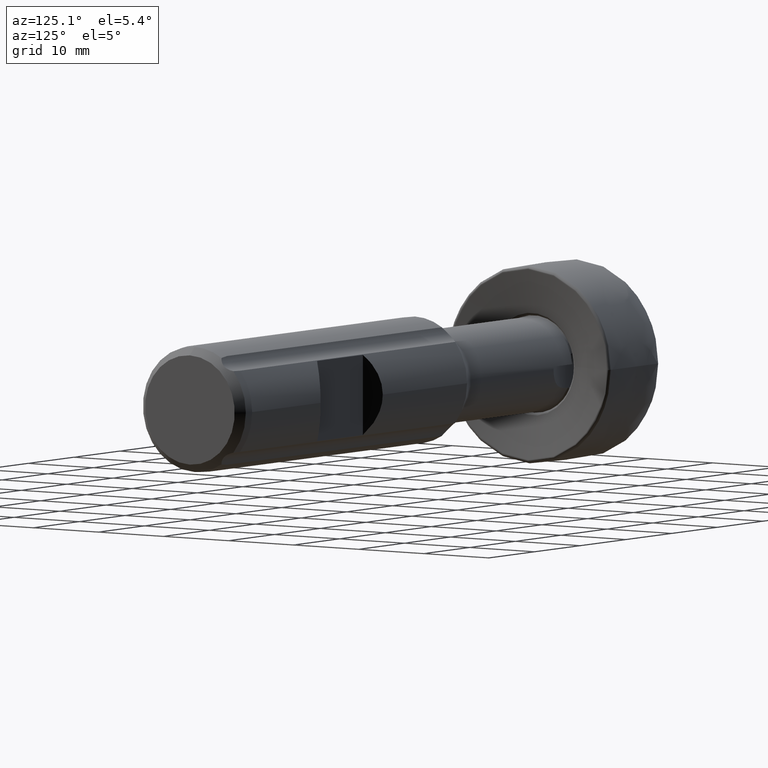
[diagram: clean part render]
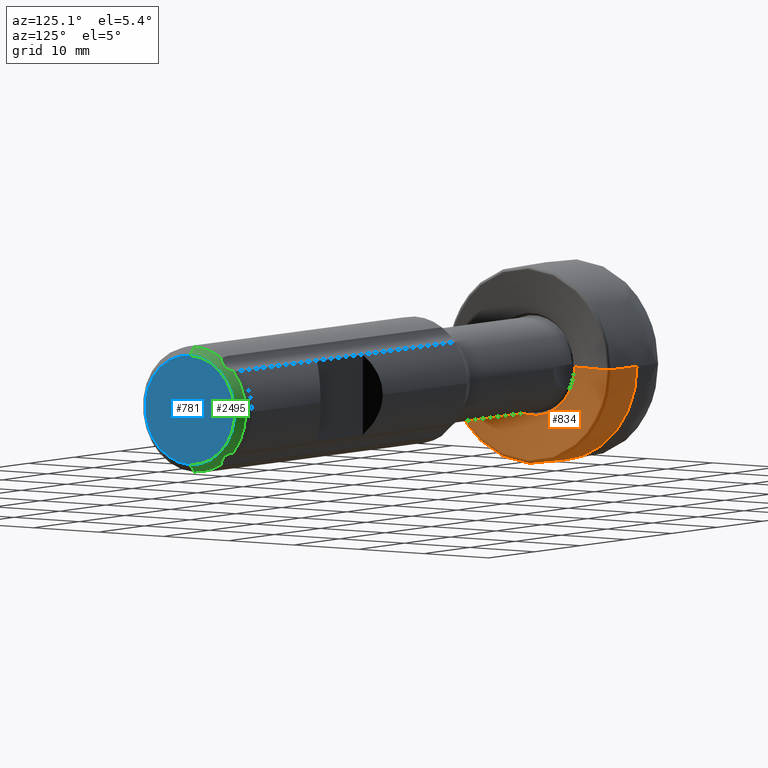
[diagram: same view with three faces highlighted in distinct colors, each labeled with its STEP entity id]
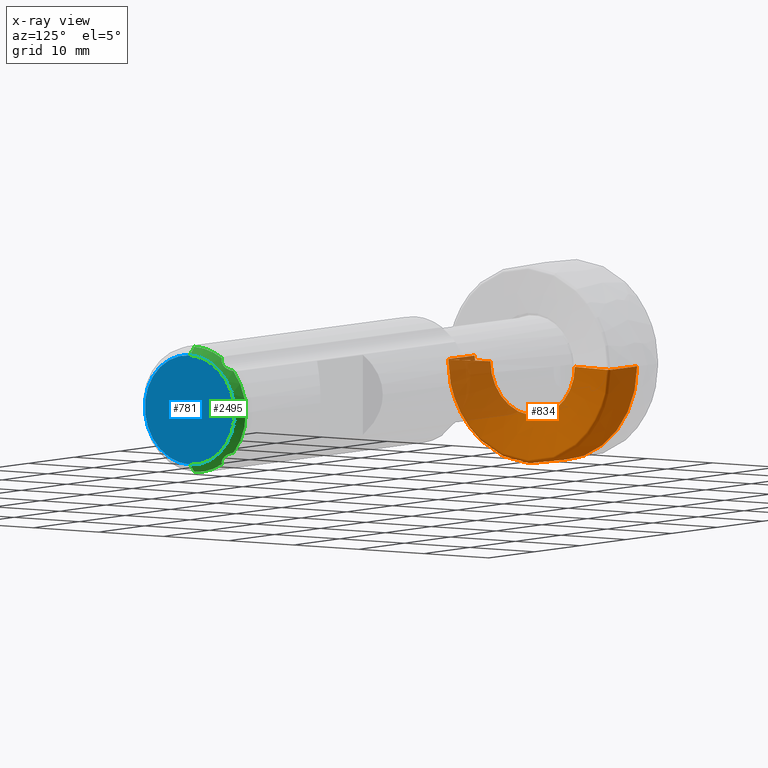
[diagram: x-ray of the same camera — body ghosted, the three highlighted faces saturated]
A machine part, auxiliary view with three faces highlighted in distinct colors.
The next image is the same camera in x-ray (body ghosted, the three faces saturated) — at least one of them is partly hidden behind the body in this view.
Their STEP definitions:

[orange] entity #834 — the highlighted face is a freeform B-spline surface patch.
#7 = CARTESIAN_POINT ( 'NONE',  ( -74.39908995793874200, 12.48189335041579700, -1.528591073888533900E-015 ) ) ;
#23 = CARTESIAN_POINT ( 'NONE',  ( -79.88823840390615800, 12.48189335041579700, -1.528591073888533900E-015 ) ) ;
#83 = CARTESIAN_POINT ( 'NONE',  ( -74.62122233425287700, -8.269108650816404400, 0.0000000000000000000 ) ) ;
#95 = CARTESIAN_POINT ( 'NONE',  ( -79.85816035350333700, -12.48189335041579700, 0.0000000000000000000 ) ) ;
#108 = CARTESIAN_POINT ( 'NONE',  ( -74.19513732123553500, -12.45330083443332100, 0.0000000000000000000 ) ) ;
#125 = CARTESIAN_POINT ( 'NONE',  ( -74.23025794863225700, 12.46669345911872600, -1.526729624066099300E-015 ) ) ;
#134 = CARTESIAN_POINT ( 'NONE',  ( -80.00633578537409100, 12.48151233041585900, -1.528544412396200100E-015 ) ) ;
#146 = CARTESIAN_POINT ( 'NONE',  ( -73.99671900663625500, -12.30616305468504900, 0.0000000000000000000 ) ) ;
#151 = CARTESIAN_POINT ( 'NONE',  ( -79.96343352991323200, -12.48189335041579700, 0.0000000000000000000 ) ) ;
#158 = CARTESIAN_POINT ( 'NONE',  ( -73.95446410567792800, -12.13801515596251000, -24.27603031192500900 ) ) ;
#173 = CARTESIAN_POINT ( 'NONE',  ( -74.34285485914875800, 12.48189335041579700, -1.528591073888533900E-015 ) ) ;
#176 = CARTESIAN_POINT ( 'NONE',  ( -73.95904738320575700, 12.02448941209618000, -24.04897882419236100 ) ) ;
#194 = CARTESIAN_POINT ( 'NONE',  ( -73.95904738320574300, 12.02448941209618400, -1.472575246990483200E-015 ) ) ;
#196 = CARTESIAN_POINT ( 'NONE',  ( -73.97857762805735100, 11.91372788953662900, -1.459010872583358600E-015 ) ) ;
#207 = CARTESIAN_POINT ( 'NONE',  ( -74.62122233425287700, -8.269108650816404400, 0.0000000000000000000 ) ) ;
#226 = EDGE_CURVE ( 'NONE', #3506, #2547, #2864, .T. ) ;
#252 = VERTEX_POINT ( 'NONE', #3732 ) ;
#299 = CARTESIAN_POINT ( 'NONE',  ( -79.84312132830193300, 12.48189335041579700, -1.528591073888533900E-015 ) ) ;
#308 = CARTESIAN_POINT ( 'NONE',  ( -74.49281512258870900, -12.48189335041579700, 0.0000000000000000000 ) ) ;
#317 = CARTESIAN_POINT ( 'NONE',  ( -74.36159989207874300, -12.48189335041579900, -24.96378670083158700 ) ) ;
#337 = CARTESIAN_POINT ( 'NONE',  ( -79.84312132830193300, 12.48189335041579700, -1.528591073888533900E-015 ) ) ;
#406 = CARTESIAN_POINT ( 'NONE',  ( -78.06593427070753000, -12.48189335041579500, 0.0000000000000000000 ) ) ;
#422 = CARTESIAN_POINT ( 'NONE',  ( -74.32410982621875900, -12.48189335041579700, 0.0000000000000000000 ) ) ;
#423 = CARTESIAN_POINT ( 'NONE',  ( -74.07200208086652500, -12.39588192886049400, 0.0000000000000000000 ) ) ;
#426 = CARTESIAN_POINT ( 'NONE',  ( -80.00633578537409100, -12.48151233041585900, 0.0000000000000000000 ) ) ;
#428 = CARTESIAN_POINT ( 'NONE',  ( -73.98508770967454500, 11.87680738201677500, -1.454489414447650000E-015 ) ) ;
#435 = CARTESIAN_POINT ( 'NONE',  ( -74.19513732123553500, -12.45330083443332300, -24.90660166886663500 ) ) ;
#441 = CARTESIAN_POINT ( 'NONE',  ( -79.99704623281599000, -12.48189335041579900, -24.96378670083158700 ) ) ;
#451 = CARTESIAN_POINT ( 'NONE',  ( -73.99671900663626900, 12.30616305468504600, -24.61232610937009100 ) ) ;
#455 = CARTESIAN_POINT ( 'NONE',  ( -79.96343352991323200, 12.48189335041579400, -24.96378670083158700 ) ) ;
#466 = CARTESIAN_POINT ( 'NONE',  ( -73.95446410567792800, 12.13801515596250600, -1.486478140875154600E-015 ) ) ;
#482 = CARTESIAN_POINT ( 'NONE',  ( -74.28661976035877500, 12.48189335041579700, -1.528591073888533900E-015 ) ) ;
#484 = CARTESIAN_POINT ( 'NONE',  ( -73.96230242401433900, -12.00602915833625900, 0.0000000000000000000 ) ) ;
#495 = CARTESIAN_POINT ( 'NONE',  ( -73.96881250563154700, 11.96910865081640700, -1.465793059786920900E-015 ) ) ;
#497 = CARTESIAN_POINT ( 'NONE',  ( -73.98508770967454500, -11.87680738201677700, -23.75361476403354300 ) ) ;
#512 = CARTESIAN_POINT ( 'NONE',  ( -74.62122233425287700, 8.269108650816402700, -16.53821730163280500 ) ) ;
#611 = CARTESIAN_POINT ( 'NONE',  ( -78.06593427070753000, -12.48189335041579500, -24.96378670083158700 ) ) ;
#626 = CARTESIAN_POINT ( 'NONE',  ( -74.49281512258870900, 12.48189335041579400, -24.96378670083158700 ) ) ;
#634 = CARTESIAN_POINT ( 'NONE',  ( -74.36159989207874300, 12.48189335041579700, -1.528591073888533900E-015 ) ) ;
#651 = CARTESIAN_POINT ( 'NONE',  ( -76.28874721311311200, 12.48189335041579500, -1.528591073888533700E-015 ) ) ;
#708 = CARTESIAN_POINT ( 'NONE',  ( -80.00633578537407700, -12.48151233041585900, 0.0000000000000000000 ) ) ;
#722 = CARTESIAN_POINT ( 'NONE',  ( -74.51156015551869400, -12.48189335041579500, 0.0000000000000000000 ) ) ;
#731 = CARTESIAN_POINT ( 'NONE',  ( -74.32410982621875900, 12.48189335041579400, -24.96378670083158700 ) ) ;
#732 = CARTESIAN_POINT ( 'NONE',  ( -73.96640620487868000, -12.19303413840599900, 0.0000000000000000000 ) ) ;
#737 = CARTESIAN_POINT ( 'NONE',  ( -74.30478254236801700, 10.06372788953662600, -1.232451214741097700E-015 ) ) ;
#746 = CARTESIAN_POINT ( 'NONE',  ( -74.19513732123553500, 12.45330083443332100, -1.525089500570783100E-015 ) ) ;
#753 = CARTESIAN_POINT ( 'NONE',  ( -79.99704623281599000, 12.48189335041579700, -1.528591073888533900E-015 ) ) ;
#764 = CARTESIAN_POINT ( 'NONE',  ( -73.96640620487868000, -12.19303413840599900, 0.0000000000000000000 ) ) ;
#769 = CARTESIAN_POINT ( 'NONE',  ( -79.93335547951039600, -12.48189335041579700, 0.0000000000000000000 ) ) ;
#776 = CARTESIAN_POINT ( 'NONE',  ( -73.94928226077995200, -12.07987017337596000, -24.15974034675191700 ) ) ;
#790 = CARTESIAN_POINT ( 'NONE',  ( -74.19513732123553500, 12.45330083443332100, -1.525089500570783100E-015 ) ) ;
#793 = CARTESIAN_POINT ( 'NONE',  ( -73.96230242401433900, 12.00602915833625600, -24.01205831667251200 ) ) ;
#805 = CARTESIAN_POINT ( 'NONE',  ( -73.98508770967454500, 11.87680738201677500, -1.454489414447650000E-015 ) ) ;
#817 = CARTESIAN_POINT ( 'NONE',  ( -74.93766212613773800, -6.474489412096182200, 0.0000000000000000000 ) ) ;
#829 = AXIS2_PLACEMENT_3D ( 'NONE', #1601, #3711, #1919 ) ;
#834 = ADVANCED_FACE ( 'NONE', ( #3452 ), #2809, .F. ) ;
#903 = CARTESIAN_POINT ( 'NONE',  ( -79.88823840390615800, 12.48189335041579400, -24.96378670083158700 ) ) ;
#914 = CARTESIAN_POINT ( 'NONE',  ( -78.06593427070753000, 12.48189335041579500, -1.528591073888533700E-015 ) ) ;
#921 = CARTESIAN_POINT ( 'NONE',  ( -74.45532505672872500, -12.48189335041579700, 0.0000000000000000000 ) ) ;
#931 = CARTESIAN_POINT ( 'NONE',  ( -74.34285485914874400, -12.48189335041579900, -24.96378670083158700 ) ) ;
#935 = CARTESIAN_POINT ( 'NONE',  ( -79.98775939396583100, 12.48189335041579700, -1.528591073888534100E-015 ) ) ;
#1006 = CARTESIAN_POINT ( 'NONE',  ( -74.45532505672872500, -12.48189335041579700, 0.0000000000000000000 ) ) ;
#1020 = CARTESIAN_POINT ( 'NONE',  ( -74.28661976035877500, -12.48189335041579700, 0.0000000000000000000 ) ) ;
#1021 = CARTESIAN_POINT ( 'NONE',  ( -73.95446410567792800, -12.13801515596250600, 0.0000000000000000000 ) ) ;
#1030 = CARTESIAN_POINT ( 'NONE',  ( -74.93766212613773800, 6.474489412096182200, -7.928962734637018700E-016 ) ) ;
#1039 = CARTESIAN_POINT ( 'NONE',  ( -74.17814855192281700, -12.44537884120017600, -24.89075768240034100 ) ) ;
#1043 = CARTESIAN_POINT ( 'NONE',  ( -79.98775939396530500, -12.48189335041579900, -24.96378670083158700 ) ) ;
#1053 = CARTESIAN_POINT ( 'NONE',  ( -73.96640620487869500, 12.19303413840599700, -24.38606827681199400 ) ) ;
#1058 = CARTESIAN_POINT ( 'NONE',  ( -79.93335547951039600, 12.48189335041579400, -24.96378670083158700 ) ) ;
#1067 = CARTESIAN_POINT ( 'NONE',  ( -73.94928226077993800, 12.07987017337596000, -1.479357434194045200E-015 ) ) ;
#1082 = CARTESIAN_POINT ( 'NONE',  ( -74.07200208086652500, 12.39588192886049400, -1.518057712678752200E-015 ) ) ;
#1084 = CARTESIAN_POINT ( 'NONE',  ( -73.96881250563154700, -11.96910865081640700, 0.0000000000000000000 ) ) ;
#1095 = CARTESIAN_POINT ( 'NONE',  ( -73.98834275048315600, -11.85834712825685100, -23.71669425651369400 ) ) ;
#1112 = CARTESIAN_POINT ( 'NONE',  ( -74.93766212613775200, 6.474489412096180500, -12.94897882419236100 ) ) ;
#1191 = CARTESIAN_POINT ( 'NONE',  ( -79.85816035350333700, -12.48189335041579700, 0.0000000000000000000 ) ) ;
#1202 = CARTESIAN_POINT ( 'NONE',  ( -76.28874721311312600, -12.48189335041579500, -24.96378670083158700 ) ) ;
#1216 = CARTESIAN_POINT ( 'NONE',  ( -74.45532505672872500, 12.48189335041579400, -24.96378670083158700 ) ) ;
#1226 = CARTESIAN_POINT ( 'NONE',  ( -74.34285485914875800, 12.48189335041579700, -1.528591073888533900E-015 ) ) ;
#1300 = CARTESIAN_POINT ( 'NONE',  ( -79.98775939396583100, -12.48189335041579700, 0.0000000000000000000 ) ) ;
#1317 = CARTESIAN_POINT ( 'NONE',  ( -74.36159989207874300, -12.48189335041579700, 0.0000000000000000000 ) ) ;
#1333 = CARTESIAN_POINT ( 'NONE',  ( -74.28661976035877500, 12.48189335041579400, -24.96378670083158700 ) ) ;
#1334 = CARTESIAN_POINT ( 'NONE',  ( -73.95579234239714600, -12.04294966585611000, 0.0000000000000000000 ) ) ;
#1346 = CARTESIAN_POINT ( 'NONE',  ( -74.17814855192281700, 12.44537884120017600, -1.524119336205199100E-015 ) ) ;
#1352 = CARTESIAN_POINT ( 'NONE',  ( -79.98775939396530500, 12.48189335041579700, -1.528591073888533900E-015 ) ) ;
#1364 = CARTESIAN_POINT ( 'NONE',  ( -73.96155463335532000, -12.17492782698428400, 0.0000000000000000000 ) ) ;
#1371 = CARTESIAN_POINT ( 'NONE',  ( -79.88823840390615800, -12.48189335041579700, 0.0000000000000000000 ) ) ;
#1381 = CARTESIAN_POINT ( 'NONE',  ( -73.95579234239714600, -12.04294966585611200, -24.08589933171221600 ) ) ;
#1390 = CARTESIAN_POINT ( 'NONE',  ( -73.96640620487868000, 12.19303413840599900, -1.493216022949331200E-015 ) ) ;
#1392 = CARTESIAN_POINT ( 'NONE',  ( -73.96881250563154700, 11.96910865081640200, -23.93821730163280400 ) ) ;
#1395 =( BOUNDED_CURVE ( )  B_SPLINE_CURVE ( 3, ( #708, #2181, #1300, #3378, #1590, #3695, #1901, #95, #2197, #406, #2477, #722, #2789, #1006, #3078, #1317, #3393, #1600, #3710, #1917, #108, #2207, #423, #2497, #732, #2804, #1021, #3094, #1334, #3415, #1620, #3726, #3363, #1578, #3674, #1886, #83, #2183 ),
 .UNSPECIFIED., .F., .T. ) 
 B_SPLINE_CURVE_WITH_KNOTS ( ( 4, 3, 1, 1, 3, 3, 1, 1, 3, 1, 1, 3, 3, 1, 1, 3, 1, 1, 3, 4 ),
 ( 0.5197194194453999000, 0.5208376674408558000, 0.5226485484149494500, 0.5244594293890430000, 0.5262703103631366500, 0.7402651795054843200, 0.7425223087433894300, 0.7447794379812944200, 0.7470365672191994200, 0.7492936964571044200, 0.7515508256950095300, 0.7538079549329145300, 0.7670297125080300900, 0.7692868417459340900, 0.7715439709838380900, 0.7738011002217419800, 0.7760582294596462000, 0.7783153586975504200, 0.7805724879354545300, 1.000000000000000000 ),
 .UNSPECIFIED. ) 
 CURVE ( )  GEOMETRIC_REPRESENTATION_ITEM ( )  RATIONAL_B_SPLINE_CURVE ( ( 1.000000000000000000, 1.000000000000000000, 1.000000000000000000, 1.000000000000000000, 1.000000000000000000, 1.000000000000000000, 1.000000000000000000, 1.000000000000000000, 1.000000000000000000, 1.000000000000000000, 1.000000000000000000, 1.000000000000000000, 1.000000000000000000, 1.000000000000000000, 1.000000000000000000, 1.000000000000000000, 1.000000000000000000, 1.000000000000000000, 1.000000000000000000, 1.000000000000000000, 1.000000000000000000, 1.000000000000000000, 0.9375385246910995500, 0.9375385246910995500, 1.000000000000000000, 1.000000000000000000, 1.000000000000000000, 1.000000000000000000, 1.000000000000000000, 1.000000000000000000, 1.000000000000000000, 1.000000000000000000, 1.000000000000000000, 1.000000000000000000, 1.000000000000000000, 1.000000000000000000, 1.000000000000000000, 1.000000000000000000 ) ) 
 REPRESENTATION_ITEM ( '' )  );
#1407 = CARTESIAN_POINT ( 'NONE',  ( -73.98834275048314200, 11.85834712825684900, -1.452228685379795900E-015 ) ) ;
#1497 = CARTESIAN_POINT ( 'NONE',  ( -79.85816035350332200, 12.48189335041579400, -24.96378670083158700 ) ) ;
#1507 = CARTESIAN_POINT ( 'NONE',  ( -76.28874721311311200, 12.48189335041579500, -1.528591073888533700E-015 ) ) ;
#1514 = CARTESIAN_POINT ( 'NONE',  ( -74.39908995793874200, -12.48189335041579700, 0.0000000000000000000 ) ) ;
#1525 = CARTESIAN_POINT ( 'NONE',  ( -79.97847255511464900, 12.48189335041579700, -1.528591073888533900E-015 ) ) ;
#1548 = CARTESIAN_POINT ( 'NONE',  ( -80.00633578537407700, 0.0000000000000000000, 0.0000000000000000000 ) ) ;
#1578 = CARTESIAN_POINT ( 'NONE',  ( -73.98508770967454500, -11.87680738201677500, 0.0000000000000000000 ) ) ;
#1590 = CARTESIAN_POINT ( 'NONE',  ( -79.96343352991323200, -12.48189335041579700, 0.0000000000000000000 ) ) ;
#1600 = CARTESIAN_POINT ( 'NONE',  ( -74.32410982621875900, -12.48189335041579700, 0.0000000000000000000 ) ) ;
#1601 = CARTESIAN_POINT ( 'NONE',  ( -74.93766212613773800, 0.0000000000000000000, 0.0000000000000000000 ) ) ;
#1619 = CARTESIAN_POINT ( 'NONE',  ( -74.23025794863225700, -12.46669345911872600, 0.0000000000000000000 ) ) ;
#1620 = CARTESIAN_POINT ( 'NONE',  ( -73.96230242401433900, -12.00602915833625900, 0.0000000000000000000 ) ) ;
#1637 = CARTESIAN_POINT ( 'NONE',  ( -74.07200208086652500, -12.39588192886049500, -24.79176385772098000 ) ) ;
#1643 = CARTESIAN_POINT ( 'NONE',  ( -79.97847255511463500, -12.48189335041579900, -24.96378670083158700 ) ) ;
#1653 = CARTESIAN_POINT ( 'NONE',  ( -73.96155463335533400, 12.17492782698428200, -24.34985565396856400 ) ) ;
#1666 = CARTESIAN_POINT ( 'NONE',  ( -74.45532505672872500, 12.48189335041579700, -1.528591073888533900E-015 ) ) ;
#1668 = CARTESIAN_POINT ( 'NONE',  ( -73.95579234239714600, 12.04294966585611000, -1.474835976058337200E-015 ) ) ;
#1686 = CARTESIAN_POINT ( 'NONE',  ( -73.95446410567792800, 12.13801515596250600, -1.486478140875154600E-015 ) ) ;
#1688 = CARTESIAN_POINT ( 'NONE',  ( -73.97857762805735100, -11.91372788953662900, 0.0000000000000000000 ) ) ;
#1700 = CARTESIAN_POINT ( 'NONE',  ( -74.30478254236801700, -10.06372788953662600, -20.12745577907324800 ) ) ;
#1791 = CARTESIAN_POINT ( 'NONE',  ( -79.84312132830193300, -12.48189335041579700, 0.0000000000000000000 ) ) ;
#1798 = CARTESIAN_POINT ( 'NONE',  ( -74.51156015551870800, -12.48189335041579500, -24.96378670083158700 ) ) ;
#1808 = CARTESIAN_POINT ( 'NONE',  ( -74.39908995793874200, 12.48189335041579400, -24.96378670083158700 ) ) ;
#1823 = VERTEX_POINT ( 'NONE', #3512 ) ;
#1830 = CARTESIAN_POINT ( 'NONE',  ( -79.93335547951039600, 12.48189335041579700, -1.528591073888533900E-015 ) ) ;
#1850 = DIRECTION ( 'NONE',  ( 0.0000000000000000000, 0.0000000000000000000, -1.000000000000000000 ) ) ;
#1886 = CARTESIAN_POINT ( 'NONE',  ( -74.30478254236801700, -10.06372788953662600, 0.0000000000000000000 ) ) ;
#1901 = CARTESIAN_POINT ( 'NONE',  ( -79.88823840390615800, -12.48189335041579700, 0.0000000000000000000 ) ) ;
#1917 = CARTESIAN_POINT ( 'NONE',  ( -74.23025794863225700, -12.46669345911872600, 0.0000000000000000000 ) ) ;
#1919 = DIRECTION ( 'NONE',  ( 0.0000000000000000000, -1.000000000000000000, 0.0000000000000000000 ) ) ;
#1932 = CARTESIAN_POINT ( 'NONE',  ( -74.23025794863227100, 12.46669345911872100, -24.93338691823744200 ) ) ;
#1935 = CARTESIAN_POINT ( 'NONE',  ( -80.00633578537409100, 12.48151233041585500, -24.96302466083171000 ) ) ;
#1943 = CARTESIAN_POINT ( 'NONE',  ( -74.07200208086652500, 12.39588192886049200, -1.518057712678752200E-015 ) ) ;
#1950 = CARTESIAN_POINT ( 'NONE',  ( -79.97847255511464900, 12.48189335041579700, -1.528591073888533900E-015 ) ) ;
#1957 = CARTESIAN_POINT ( 'NONE',  ( -73.95446410567792800, -12.13801515596250600, 0.0000000000000000000 ) ) ;
#1976 = CARTESIAN_POINT ( 'NONE',  ( -74.36159989207874300, 12.48189335041579700, -1.528591073888533900E-015 ) ) ;
#1978 = CARTESIAN_POINT ( 'NONE',  ( -73.95904738320575700, -12.02448941209618600, -24.04897882419236100 ) ) ;
#1986 = CARTESIAN_POINT ( 'NONE',  ( -73.95579234239714600, 12.04294966585611000, -1.474835976058337200E-015 ) ) ;
#1989 = CARTESIAN_POINT ( 'NONE',  ( -73.97857762805735100, 11.91372788953662400, -23.82745577907324700 ) ) ;
#2000 = CARTESIAN_POINT ( 'NONE',  ( -74.30478254236801700, 10.06372788953662600, -1.232451214741097700E-015 ) ) ;
#2092 = CARTESIAN_POINT ( 'NONE',  ( -79.84312132830191900, 12.48189335041579400, -24.96378670083158700 ) ) ;
#2104 = CARTESIAN_POINT ( 'NONE',  ( -74.51156015551869400, 12.48189335041579500, -1.528591073888533700E-015 ) ) ;
#2114 = CARTESIAN_POINT ( 'NONE',  ( -74.36159989207874300, -12.48189335041579700, 0.0000000000000000000 ) ) ;
#2122 = CARTESIAN_POINT ( 'NONE',  ( -79.85816035350333700, 12.48189335041579700, -1.528591073888533900E-015 ) ) ;
#2157 = ORIENTED_EDGE ( 'NONE', *, *, #3428, .F. ) ;
#2181 = CARTESIAN_POINT ( 'NONE',  ( -79.99704623281701300, -12.48189335041579700, 0.0000000000000000000 ) ) ;
#2183 = CARTESIAN_POINT ( 'NONE',  ( -74.93766212613773800, -6.474489412096182200, 0.0000000000000000000 ) ) ;
#2197 = CARTESIAN_POINT ( 'NONE',  ( -79.84312132830193300, -12.48189335041579700, 0.0000000000000000000 ) ) ;
#2207 = CARTESIAN_POINT ( 'NONE',  ( -74.17814855192281700, -12.44537884120017600, 0.0000000000000000000 ) ) ;
#2213 = CARTESIAN_POINT ( 'NONE',  ( -73.97857762805735100, 11.91372788953662900, -1.459010872583358600E-015 ) ) ;
#2224 = CARTESIAN_POINT ( 'NONE',  ( -74.19513732123553500, -12.45330083443332100, 0.0000000000000000000 ) ) ;
#2227 = CARTESIAN_POINT ( 'NONE',  ( -79.99704623281599000, -12.48189335041579700, 0.0000000000000000000 ) ) ;
#2236 = CARTESIAN_POINT ( 'NONE',  ( -73.99671900663626900, -12.30616305468505100, -24.61232610937009100 ) ) ;
#2243 = CARTESIAN_POINT ( 'NONE',  ( -79.96343352991323200, -12.48189335041579900, -24.96378670083158700 ) ) ;
#2253 = CARTESIAN_POINT ( 'NONE',  ( -73.95446410567792800, 12.13801515596250400, -24.27603031192500900 ) ) ;
#2264 = CARTESIAN_POINT ( 'NONE',  ( -74.32410982621875900, 12.48189335041579700, -1.528591073888533900E-015 ) ) ;
#2266 = CARTESIAN_POINT ( 'NONE',  ( -73.95904738320574300, 12.02448941209618400, -1.472575246990483200E-015 ) ) ;
#2280 = CARTESIAN_POINT ( 'NONE',  ( -73.96230242401433900, 12.00602915833625900, -1.470314517922629100E-015 ) ) ;
#2282 = CARTESIAN_POINT ( 'NONE',  ( -73.98508770967454500, -11.87680738201677500, 0.0000000000000000000 ) ) ;
#2295 = CARTESIAN_POINT ( 'NONE',  ( -74.62122233425287700, -8.269108650816404400, -16.53821730163280500 ) ) ;
#2383 = CARTESIAN_POINT ( 'NONE',  ( -78.06593427070753000, -12.48189335041579500, 0.0000000000000000000 ) ) ;
#2390 = CARTESIAN_POINT ( 'NONE',  ( -74.49281512258870900, -12.48189335041579900, -24.96378670083158700 ) ) ;
#2397 = CARTESIAN_POINT ( 'NONE',  ( -74.36159989207874300, 12.48189335041579400, -24.96378670083158700 ) ) ;
#2416 = CARTESIAN_POINT ( 'NONE',  ( -78.06593427070753000, 12.48189335041579500, -1.528591073888533700E-015 ) ) ;
#2477 = CARTESIAN_POINT ( 'NONE',  ( -76.28874721311311200, -12.48189335041579500, 0.0000000000000000000 ) ) ;
#2496 = CARTESIAN_POINT ( 'NONE',  ( -74.32410982621875900, -12.48189335041579900, -24.96378670083158700 ) ) ;
#2497 = CARTESIAN_POINT ( 'NONE',  ( -73.99671900663626900, -12.30616305468505100, 0.0000000000000000000 ) ) ;
#2502 = CARTESIAN_POINT ( 'NONE',  ( -73.98834275048314200, 11.85834712825684900, -1.452228685379795900E-015 ) ) ;
#2514 = CARTESIAN_POINT ( 'NONE',  ( -74.19513732123553500, 12.45330083443331800, -24.90660166886663500 ) ) ;
#2519 = CARTESIAN_POINT ( 'NONE',  ( -79.99704623281599000, 12.48189335041579400, -24.96378670083158700 ) ) ;
#2530 = CARTESIAN_POINT ( 'NONE',  ( -73.99671900663625500, 12.30616305468504900, -1.507070319470546100E-015 ) ) ;
#2536 = CARTESIAN_POINT ( 'NONE',  ( -79.96343352991323200, 12.48189335041579700, -1.528591073888533900E-015 ) ) ;
#2544 = CARTESIAN_POINT ( 'NONE',  ( -73.94928226077993800, -12.07987017337596000, 0.0000000000000000000 ) ) ;
#2547 = VERTEX_POINT ( 'NONE', #3307 ) ;
#2558 = CARTESIAN_POINT ( 'NONE',  ( -74.23025794863225700, 12.46669345911872600, -1.526729624066099300E-015 ) ) ;
#2561 = CARTESIAN_POINT ( 'NONE',  ( -73.96230242401433900, -12.00602915833625900, -24.01205831667251200 ) ) ;
#2574 = CARTESIAN_POINT ( 'NONE',  ( -73.98508770967454500, 11.87680738201677100, -23.75361476403354300 ) ) ;
#2587 = CARTESIAN_POINT ( 'NONE',  ( -74.62122233425287700, 8.269108650816404400, -1.012673744102400000E-015 ) ) ;
#2688 = CARTESIAN_POINT ( 'NONE',  ( -78.06593427070753000, 12.48189335041579400, -24.96378670083158700 ) ) ;
#2698 = CARTESIAN_POINT ( 'NONE',  ( -74.49281512258870900, 12.48189335041579700, -1.528591073888533900E-015 ) ) ;
#2710 = CARTESIAN_POINT ( 'NONE',  ( -74.34285485914875800, -12.48189335041579700, 0.0000000000000000000 ) ) ;
#2723 = CARTESIAN_POINT ( 'NONE',  ( -74.51156015551869400, 12.48189335041579500, -1.528591073888533700E-015 ) ) ;
#2789 = CARTESIAN_POINT ( 'NONE',  ( -74.49281512258870900, -12.48189335041579700, 0.0000000000000000000 ) ) ;
#2803 = CARTESIAN_POINT ( 'NONE',  ( -74.32410982621875900, 12.48189335041579700, -1.528591073888533900E-015 ) ) ;
#2804 = CARTESIAN_POINT ( 'NONE',  ( -73.96155463335532000, -12.17492782698428400, 0.0000000000000000000 ) ) ;
#2808 = CARTESIAN_POINT ( 'NONE',  ( -74.62122233425287700, 8.269108650816404400, -1.012673744102400000E-015 ) ) ;
#2809 =( BOUNDED_SURFACE ( )  B_SPLINE_SURFACE ( 3, 3, ( 
 ( #426, #3731, #1935, #134 ),
 ( #2227, #441, #2519, #753 ),
 ( #2822, #1043, #3119, #1352 ),
 ( #3436, #1643, #3748, #1950 ),
 ( #151, #2243, #455, #2536 ),
 ( #769, #2836, #1058, #3135 ),
 ( #1371, #3449, #903, #2971 ),
 ( #1191, #3272, #1497, #3585 ),
 ( #1791, #3894, #2092, #299 ),
 ( #2383, #611, #2688, #914 ),
 ( #2983, #1202, #3279, #1507 ),
 ( #3593, #1798, #3900, #2104 ),
 ( #308, #2390, #626, #2698 ),
 ( #921, #2991, #1216, #3289 ),
 ( #1514, #3610, #1808, #7 ),
 ( #2114, #317, #2397, #634 ),
 ( #2710, #931, #2996, #1226 ),
 ( #422, #2496, #731, #2803 ),
 ( #1020, #3093, #1333, #3414 ),
 ( #1619, #3725, #1932, #125 ),
 ( #2224, #435, #2514, #746 ),
 ( #2814, #1039, #3110, #1346 ),
 ( #3431, #1637, #3741, #1943 ),
 ( #146, #2236, #451, #2530 ),
 ( #764, #2830, #1053, #3130 ),
 ( #1364, #3444, #1653, #3759 ),
 ( #1957, #158, #2253, #466 ),
 ( #2544, #776, #2846, #1067 ),
 ( #3141, #1381, #3464, #1668 ),
 ( #3774, #1978, #176, #2266 ),
 ( #484, #2561, #793, #2860 ),
 ( #1084, #3160, #1392, #3482 ),
 ( #1688, #3790, #1989, #196 ),
 ( #2282, #497, #2574, #805 ),
 ( #2873, #1095, #3174, #1407 ),
 ( #3493, #1700, #3804, #2000 ),
 ( #207, #2295, #512, #2587 ),
 ( #817, #2892, #1112, #3185 ) ),
 .UNSPECIFIED., .F., .F., .F. ) 
 B_SPLINE_SURFACE_WITH_KNOTS ( ( 4, 3, 1, 1, 3, 3, 1, 1, 3, 1, 1, 3, 3, 1, 1, 3, 1, 1, 3, 4 ),
 ( 4, 4 ),
 ( 0.5197194194454621800, 0.5208376674408558000, 0.5226485484149494500, 0.5244594293890430000, 0.5262703103631366500, 0.7402651795054843200, 0.7425223087433894300, 0.7447794379812944200, 0.7470365672191994200, 0.7492936964571044200, 0.7515508256950095300, 0.7538079549329145300, 0.7670297125080300900, 0.7692868417459340900, 0.7715439709838380900, 0.7738011002217419800, 0.7760582294596462000, 0.7783153586975504200, 0.7805724879354545300, 1.000000000000000000 ),
 ( 0.0000000000000000000, 1.000000000000000000 ),
 .UNSPECIFIED. ) 
 GEOMETRIC_REPRESENTATION_ITEM ( )  RATIONAL_B_SPLINE_SURFACE ( (
 ( 1.000000000000000000, 0.3333333333333334300, 0.3333333333333334300, 1.000000000000000000),
 ( 1.000000000000000000, 0.3333333333333334300, 0.3333333333333334300, 1.000000000000000000),
 ( 1.000000000000000000, 0.3333333333333334300, 0.3333333333333334300, 1.000000000000000000),
 ( 1.000000000000000000, 0.3333333333333334300, 0.3333333333333334300, 1.000000000000000000),
 ( 1.000000000000000000, 0.3333333333333334300, 0.3333333333333334300, 1.000000000000000000),
 ( 1.000000000000000000, 0.3333333333333334300, 0.3333333333333334300, 1.000000000000000000),
 ( 1.000000000000000000, 0.3333333333333334300, 0.3333333333333334300, 1.000000000000000000),
 ( 1.000000000000000000, 0.3333333333333334300, 0.3333333333333334300, 1.000000000000000000),
 ( 1.000000000000000000, 0.3333333333333334300, 0.3333333333333334300, 1.000000000000000000),
 ( 1.000000000000000000, 0.3333333333333334300, 0.3333333333333334300, 1.000000000000000000),
 ( 1.000000000000000000, 0.3333333333333334300, 0.3333333333333334300, 1.000000000000000000),
 ( 1.000000000000000000, 0.3333333333333334300, 0.3333333333333334300, 1.000000000000000000),
 ( 1.000000000000000000, 0.3333333333333334300, 0.3333333333333334300, 1.000000000000000000),
 ( 1.000000000000000000, 0.3333333333333334300, 0.3333333333333334300, 1.000000000000000000),
 ( 1.000000000000000000, 0.3333333333333334300, 0.3333333333333334300, 1.000000000000000000),
 ( 1.000000000000000000, 0.3333333333333334300, 0.3333333333333334300, 1.000000000000000000),
 ( 1.000000000000000000, 0.3333333333333334300, 0.3333333333333334300, 1.000000000000000000),
 ( 1.000000000000000000, 0.3333333333333334300, 0.3333333333333334300, 1.000000000000000000),
 ( 1.000000000000000000, 0.3333333333333334300, 0.3333333333333334300, 1.000000000000000000),
 ( 1.000000000000000000, 0.3333333333333334300, 0.3333333333333334300, 1.000000000000000000),
 ( 1.000000000000000000, 0.3333333333333334300, 0.3333333333333334300, 1.000000000000000000),
 ( 1.000000000000000000, 0.3333333333333334300, 0.3333333333333334300, 1.000000000000000000),
 ( 0.9375385246910995500, 0.3125128415636999600, 0.3125128415636999600, 0.9375385246910995500),
 ( 0.9375385246910995500, 0.3125128415636999600, 0.3125128415636999600, 0.9375385246910995500),
 ( 1.000000000000000000, 0.3333333333333334300, 0.3333333333333334300, 1.000000000000000000),
 ( 1.000000000000000000, 0.3333333333333334300, 0.3333333333333334300, 1.000000000000000000),
 ( 1.000000000000000000, 0.3333333333333334300, 0.3333333333333334300, 1.000000000000000000),
 ( 1.000000000000000000, 0.3333333333333334300, 0.3333333333333334300, 1.000000000000000000),
 ( 1.000000000000000000, 0.3333333333333334300, 0.3333333333333334300, 1.000000000000000000),
 ( 1.000000000000000000, 0.3333333333333334300, 0.3333333333333334300, 1.000000000000000000),
 ( 1.000000000000000000, 0.3333333333333334300, 0.3333333333333334300, 1.000000000000000000),
 ( 1.000000000000000000, 0.3333333333333334300, 0.3333333333333334300, 1.000000000000000000),
 ( 1.000000000000000000, 0.3333333333333334300, 0.3333333333333334300, 1.000000000000000000),
 ( 1.000000000000000000, 0.3333333333333334300, 0.3333333333333334300, 1.000000000000000000),
 ( 1.000000000000000000, 0.3333333333333334300, 0.3333333333333334300, 1.000000000000000000),
 ( 1.000000000000000000, 0.3333333333333334300, 0.3333333333333334300, 1.000000000000000000),
 ( 1.000000000000000000, 0.3333333333333334300, 0.3333333333333334300, 1.000000000000000000),
 ( 1.000000000000000000, 0.3333333333333334300, 0.3333333333333334300, 1.000000000000000000) ) ) 
 REPRESENTATION_ITEM ( '' )  SURFACE ( )  );
#2814 = CARTESIAN_POINT ( 'NONE',  ( -74.17814855192281700, -12.44537884120017600, 0.0000000000000000000 ) ) ;
#2822 = CARTESIAN_POINT ( 'NONE',  ( -79.98775939396530500, -12.48189335041579700, 0.0000000000000000000 ) ) ;
#2830 = CARTESIAN_POINT ( 'NONE',  ( -73.96640620487869500, -12.19303413840599900, -24.38606827681199400 ) ) ;
#2836 = CARTESIAN_POINT ( 'NONE',  ( -79.93335547951039600, -12.48189335041579900, -24.96378670083158700 ) ) ;
#2839 = ORIENTED_EDGE ( 'NONE', *, *, #3614, .T. ) ;
#2846 = CARTESIAN_POINT ( 'NONE',  ( -73.94928226077995200, 12.07987017337595900, -24.15974034675191700 ) ) ;
#2858 = CARTESIAN_POINT ( 'NONE',  ( -74.17814855192281700, 12.44537884120017600, -1.524119336205199100E-015 ) ) ;
#2860 = CARTESIAN_POINT ( 'NONE',  ( -73.96230242401433900, 12.00602915833625900, -1.470314517922629100E-015 ) ) ;
#2864 =( BOUNDED_CURVE ( )  B_SPLINE_CURVE ( 3, ( #3309, #3002, #935, #1525, #3622, #1830, #23, #2122, #337, #2416, #651, #2723, #3461, #1666, #3772, #1976, #173, #2264, #482, #2558, #790, #2858, #1082, #3158, #1390, #3479, #1686, #3788, #1986, #194, #2280, #495, #2213, #428, #2502, #737, #2808, #1030 ),
 .UNSPECIFIED., .F., .T. ) 
 B_SPLINE_CURVE_WITH_KNOTS ( ( 4, 3, 1, 1, 3, 3, 1, 1, 3, 1, 1, 3, 3, 1, 1, 3, 1, 1, 3, 4 ),
 ( 0.5197194194453999000, 0.5208376674408558000, 0.5226485484149494500, 0.5244594293890430000, 0.5262703103631366500, 0.7402651795054843200, 0.7425223087433894300, 0.7447794379812944200, 0.7470365672191994200, 0.7492936964571044200, 0.7515508256950095300, 0.7538079549329145300, 0.7670297125080300900, 0.7692868417459340900, 0.7715439709838380900, 0.7738011002217419800, 0.7760582294596462000, 0.7783153586975504200, 0.7805724879354545300, 1.000000000000000000 ),
 .UNSPECIFIED. ) 
 CURVE ( )  GEOMETRIC_REPRESENTATION_ITEM ( )  RATIONAL_B_SPLINE_CURVE ( ( 1.000000000000000000, 1.000000000000000000, 1.000000000000000000, 1.000000000000000000, 1.000000000000000000, 1.000000000000000000, 1.000000000000000000, 1.000000000000000000, 1.000000000000000000, 1.000000000000000000, 1.000000000000000000, 1.000000000000000000, 1.000000000000000000, 1.000000000000000000, 1.000000000000000000, 1.000000000000000000, 1.000000000000000000, 1.000000000000000000, 1.000000000000000000, 1.000000000000000000, 1.000000000000000000, 1.000000000000000000, 0.9375385246910995500, 0.9375385246910995500, 1.000000000000000000, 1.000000000000000000, 1.000000000000000000, 1.000000000000000000, 1.000000000000000000, 1.000000000000000000, 1.000000000000000000, 1.000000000000000000, 1.000000000000000000, 1.000000000000000000, 1.000000000000000000, 1.000000000000000000, 1.000000000000000000, 1.000000000000000000 ) ) 
 REPRESENTATION_ITEM ( '' )  );
#2873 = CARTESIAN_POINT ( 'NONE',  ( -73.98834275048314200, -11.85834712825684900, 0.0000000000000000000 ) ) ;
#2890 = ORIENTED_EDGE ( 'NONE', *, *, #226, .T. ) ;
#2892 = CARTESIAN_POINT ( 'NONE',  ( -74.93766212613775200, -6.474489412096183100, -12.94897882419236100 ) ) ;
#2971 = CARTESIAN_POINT ( 'NONE',  ( -79.88823840390615800, 12.48189335041579700, -1.528591073888533900E-015 ) ) ;
#2983 = CARTESIAN_POINT ( 'NONE',  ( -76.28874721311311200, -12.48189335041579500, 0.0000000000000000000 ) ) ;
#2991 = CARTESIAN_POINT ( 'NONE',  ( -74.45532505672872500, -12.48189335041579900, -24.96378670083158700 ) ) ;
#2996 = CARTESIAN_POINT ( 'NONE',  ( -74.34285485914874400, 12.48189335041579400, -24.96378670083158700 ) ) ;
#3002 = CARTESIAN_POINT ( 'NONE',  ( -79.99704623281701300, 12.48189335041579700, -1.528591073888534100E-015 ) ) ;
#3008 = EDGE_LOOP ( 'NONE', ( #2839, #2890, #3609, #2157 ) ) ;
#3078 = CARTESIAN_POINT ( 'NONE',  ( -74.39908995793874200, -12.48189335041579700, 0.0000000000000000000 ) ) ;
#3093 = CARTESIAN_POINT ( 'NONE',  ( -74.28661976035877500, -12.48189335041579900, -24.96378670083158700 ) ) ;
#3094 = CARTESIAN_POINT ( 'NONE',  ( -73.94928226077993800, -12.07987017337596000, 0.0000000000000000000 ) ) ;
#3110 = CARTESIAN_POINT ( 'NONE',  ( -74.17814855192281700, 12.44537884120017100, -24.89075768240034100 ) ) ;
#3119 = CARTESIAN_POINT ( 'NONE',  ( -79.98775939396530500, 12.48189335041579400, -24.96378670083158700 ) ) ;
#3130 = CARTESIAN_POINT ( 'NONE',  ( -73.96640620487868000, 12.19303413840599900, -1.493216022949331200E-015 ) ) ;
#3135 = CARTESIAN_POINT ( 'NONE',  ( -79.93335547951039600, 12.48189335041579700, -1.528591073888533900E-015 ) ) ;
#3141 = CARTESIAN_POINT ( 'NONE',  ( -73.95579234239714600, -12.04294966585611000, 0.0000000000000000000 ) ) ;
#3158 = CARTESIAN_POINT ( 'NONE',  ( -73.99671900663626900, 12.30616305468505100, -1.507070319470545900E-015 ) ) ;
#3160 = CARTESIAN_POINT ( 'NONE',  ( -73.96881250563154700, -11.96910865081640700, -23.93821730163280400 ) ) ;
#3174 = CARTESIAN_POINT ( 'NONE',  ( -73.98834275048315600, 11.85834712825684700, -23.71669425651369400 ) ) ;
#3185 = CARTESIAN_POINT ( 'NONE',  ( -74.93766212613773800, 6.474489412096182200, -7.928962734637018700E-016 ) ) ;
#3249 = CIRCLE ( 'NONE', #829, 6.474489412096182200 ) ;
#3272 = CARTESIAN_POINT ( 'NONE',  ( -79.85816035350332200, -12.48189335041579900, -24.96378670083158700 ) ) ;
#3279 = CARTESIAN_POINT ( 'NONE',  ( -76.28874721311312600, 12.48189335041579400, -24.96378670083158700 ) ) ;
#3289 = CARTESIAN_POINT ( 'NONE',  ( -74.45532505672872500, 12.48189335041579700, -1.528591073888533900E-015 ) ) ;
#3307 = CARTESIAN_POINT ( 'NONE',  ( -74.93766212613773800, 6.474489412096182200, -7.928962734637018700E-016 ) ) ;
#3309 = CARTESIAN_POINT ( 'NONE',  ( -80.00633578537407700, 12.48151233041585900, -1.528544412396200500E-015 ) ) ;
#3363 = CARTESIAN_POINT ( 'NONE',  ( -73.97857762805735100, -11.91372788953662900, 0.0000000000000000000 ) ) ;
#3378 = CARTESIAN_POINT ( 'NONE',  ( -79.97847255511464900, -12.48189335041579700, 0.0000000000000000000 ) ) ;
#3393 = CARTESIAN_POINT ( 'NONE',  ( -74.34285485914875800, -12.48189335041579700, 0.0000000000000000000 ) ) ;
#3414 = CARTESIAN_POINT ( 'NONE',  ( -74.28661976035877500, 12.48189335041579700, -1.528591073888533900E-015 ) ) ;
#3415 = CARTESIAN_POINT ( 'NONE',  ( -73.95904738320574300, -12.02448941209618400, 0.0000000000000000000 ) ) ;
#3416 = CARTESIAN_POINT ( 'NONE',  ( -80.00633578537407700, 12.48151233041585900, -1.528544412396200500E-015 ) ) ;
#3428 = EDGE_CURVE ( 'NONE', #252, #1823, #1395, .T. ) ;
#3431 = CARTESIAN_POINT ( 'NONE',  ( -74.07200208086652500, -12.39588192886049200, 0.0000000000000000000 ) ) ;
#3436 = CARTESIAN_POINT ( 'NONE',  ( -79.97847255511464900, -12.48189335041579700, 0.0000000000000000000 ) ) ;
#3444 = CARTESIAN_POINT ( 'NONE',  ( -73.96155463335533400, -12.17492782698428400, -24.34985565396856400 ) ) ;
#3449 = CARTESIAN_POINT ( 'NONE',  ( -79.88823840390615800, -12.48189335041579900, -24.96378670083158700 ) ) ;
#3452 = FACE_OUTER_BOUND ( 'NONE', #3008, .T. ) ;
#3461 = CARTESIAN_POINT ( 'NONE',  ( -74.49281512258870900, 12.48189335041579700, -1.528591073888533900E-015 ) ) ;
#3464 = CARTESIAN_POINT ( 'NONE',  ( -73.95579234239714600, 12.04294966585610800, -24.08589933171221600 ) ) ;
#3479 = CARTESIAN_POINT ( 'NONE',  ( -73.96155463335532000, 12.17492782698428400, -1.490998639316634300E-015 ) ) ;
#3482 = CARTESIAN_POINT ( 'NONE',  ( -73.96881250563154700, 11.96910865081640700, -1.465793059786920900E-015 ) ) ;
#3484 = EDGE_CURVE ( 'NONE', #1823, #2547, #3249, .T. ) ;
#3493 = CARTESIAN_POINT ( 'NONE',  ( -74.30478254236801700, -10.06372788953662600, 0.0000000000000000000 ) ) ;
#3497 = CIRCLE ( 'NONE', #3841, 12.48151233041585900 ) ;
#3506 = VERTEX_POINT ( 'NONE', #3416 ) ;
#3512 = CARTESIAN_POINT ( 'NONE',  ( -74.93766212613773800, -6.474489412096182200, 0.0000000000000000000 ) ) ;
#3585 = CARTESIAN_POINT ( 'NONE',  ( -79.85816035350333700, 12.48189335041579700, -1.528591073888533900E-015 ) ) ;
#3593 = CARTESIAN_POINT ( 'NONE',  ( -74.51156015551869400, -12.48189335041579500, 0.0000000000000000000 ) ) ;
#3609 = ORIENTED_EDGE ( 'NONE', *, *, #3484, .F. ) ;
#3610 = CARTESIAN_POINT ( 'NONE',  ( -74.39908995793874200, -12.48189335041579900, -24.96378670083158700 ) ) ;
#3614 = EDGE_CURVE ( 'NONE', #252, #3506, #3497, .T. ) ;
#3622 = CARTESIAN_POINT ( 'NONE',  ( -79.96343352991323200, 12.48189335041579700, -1.528591073888533900E-015 ) ) ;
#3647 = DIRECTION ( 'NONE',  ( 1.000000000000000000, -0.0000000000000000000, -0.0000000000000000000 ) ) ;
#3674 = CARTESIAN_POINT ( 'NONE',  ( -73.98834275048314200, -11.85834712825684900, 0.0000000000000000000 ) ) ;
#3695 = CARTESIAN_POINT ( 'NONE',  ( -79.93335547951039600, -12.48189335041579700, 0.0000000000000000000 ) ) ;
#3710 = CARTESIAN_POINT ( 'NONE',  ( -74.28661976035877500, -12.48189335041579700, 0.0000000000000000000 ) ) ;
#3711 = DIRECTION ( 'NONE',  ( 1.000000000000000000, -0.0000000000000000000, -0.0000000000000000000 ) ) ;
#3725 = CARTESIAN_POINT ( 'NONE',  ( -74.23025794863227100, -12.46669345911872600, -24.93338691823744200 ) ) ;
#3726 = CARTESIAN_POINT ( 'NONE',  ( -73.96881250563154700, -11.96910865081640700, 0.0000000000000000000 ) ) ;
#3731 = CARTESIAN_POINT ( 'NONE',  ( -80.00633578537409100, -12.48151233041585900, -24.96302466083171000 ) ) ;
#3732 = CARTESIAN_POINT ( 'NONE',  ( -80.00633578537407700, -12.48151233041585900, 0.0000000000000000000 ) ) ;
#3741 = CARTESIAN_POINT ( 'NONE',  ( -74.07200208086652500, 12.39588192886049000, -24.79176385772098000 ) ) ;
#3748 = CARTESIAN_POINT ( 'NONE',  ( -79.97847255511463500, 12.48189335041579400, -24.96378670083158700 ) ) ;
#3759 = CARTESIAN_POINT ( 'NONE',  ( -73.96155463335532000, 12.17492782698428400, -1.490998639316634300E-015 ) ) ;
#3772 = CARTESIAN_POINT ( 'NONE',  ( -74.39908995793874200, 12.48189335041579700, -1.528591073888533900E-015 ) ) ;
#3774 = CARTESIAN_POINT ( 'NONE',  ( -73.95904738320574300, -12.02448941209618400, 0.0000000000000000000 ) ) ;
#3788 = CARTESIAN_POINT ( 'NONE',  ( -73.94928226077993800, 12.07987017337596000, -1.479357434194045200E-015 ) ) ;
#3790 = CARTESIAN_POINT ( 'NONE',  ( -73.97857762805735100, -11.91372788953662900, -23.82745577907324700 ) ) ;
#3804 = CARTESIAN_POINT ( 'NONE',  ( -74.30478254236801700, 10.06372788953662400, -20.12745577907324800 ) ) ;
#3841 = AXIS2_PLACEMENT_3D ( 'NONE', #1548, #3647, #1850 ) ;
#3894 = CARTESIAN_POINT ( 'NONE',  ( -79.84312132830191900, -12.48189335041579900, -24.96378670083158700 ) ) ;
#3900 = CARTESIAN_POINT ( 'NONE',  ( -74.51156015551870800, 12.48189335041579400, -24.96378670083158700 ) ) ;

[blue] entity #781 — the highlighted planar face has unit normal (1, 0, -0).
#53 = CIRCLE ( 'NONE', #631, 6.900000000000000400 ) ;
#224 = CARTESIAN_POINT ( 'NONE',  ( 0.0000000000000000000, 0.0000000000000000000, 0.0000000000000000000 ) ) ;
#437 = PLANE ( 'NONE',  #791 ) ;
#533 = DIRECTION ( 'NONE',  ( 0.0000000000000000000, 0.0000000000000000000, -1.000000000000000000 ) ) ;
#613 = CIRCLE ( 'NONE', #1194, 6.900000000000000400 ) ;
#631 = AXIS2_PLACEMENT_3D ( 'NONE', #2790, #1007, #3079 ) ;
#668 = ORIENTED_EDGE ( 'NONE', *, *, #1811, .T. ) ;
#684 = FACE_OUTER_BOUND ( 'NONE', #3113, .T. ) ;
#748 = DIRECTION ( 'NONE',  ( 1.000000000000000000, 0.0000000000000000000, -0.0000000000000000000 ) ) ;
#781 = ADVANCED_FACE ( 'NONE', ( #684 ), #437, .T. ) ;
#791 = AXIS2_PLACEMENT_3D ( 'NONE', #2515, #748, #2815 ) ;
#1007 = DIRECTION ( 'NONE',  ( 1.000000000000000000, -0.0000000000000000000, -0.0000000000000000000 ) ) ;
#1194 = AXIS2_PLACEMENT_3D ( 'NONE', #224, #2311, #533 ) ;
#1362 = VERTEX_POINT ( 'NONE', #3812 ) ;
#1811 = EDGE_CURVE ( 'NONE', #1362, #3845, #613, .T. ) ;
#2089 = ORIENTED_EDGE ( 'NONE', *, *, #3470, .T. ) ;
#2311 = DIRECTION ( 'NONE',  ( 1.000000000000000000, -0.0000000000000000000, -0.0000000000000000000 ) ) ;
#2515 = CARTESIAN_POINT ( 'NONE',  ( 0.0000000000000000000, 0.0000000000000000000, 0.0000000000000000000 ) ) ;
#2539 = CARTESIAN_POINT ( 'NONE',  ( 0.0000000000000000000, 9.062386313690414400E-016, -6.900000000000000400 ) ) ;
#2790 = CARTESIAN_POINT ( 'NONE',  ( 0.0000000000000000000, 0.0000000000000000000, 0.0000000000000000000 ) ) ;
#2815 = DIRECTION ( 'NONE',  ( -0.0000000000000000000, 0.0000000000000000000, -1.000000000000000000 ) ) ;
#3079 = DIRECTION ( 'NONE',  ( 0.0000000000000000000, 0.0000000000000000000, -1.000000000000000000 ) ) ;
#3113 = EDGE_LOOP ( 'NONE', ( #668, #2089 ) ) ;
#3470 = EDGE_CURVE ( 'NONE', #3845, #1362, #53, .T. ) ;
#3812 = CARTESIAN_POINT ( 'NONE',  ( 0.0000000000000000000, 0.0000000000000000000, 6.900000000000000400 ) ) ;
#3845 = VERTEX_POINT ( 'NONE', #2539 ) ;

[green] entity #2495 — the highlighted conical surface has half-angle 45 deg.
#53 = CIRCLE ( 'NONE', #631, 6.900000000000000400 ) ;
#60 = EDGE_CURVE ( 'NONE', #3292, #1912, #741, .T. ) ;
#62 = DIRECTION ( 'NONE',  ( -0.7071067811865475700, 0.0000000000000000000, 0.7071067811865474600 ) ) ;
#140 = AXIS2_PLACEMENT_3D ( 'NONE', #2992, #1221, #3291 ) ;
#177 = ORIENTED_EDGE ( 'NONE', *, *, #3090, .T. ) ;
#199 = CARTESIAN_POINT ( 'NONE',  ( -0.6005428274867404800, 4.789927329179933600, -5.772966278013168300 ) ) ;
#221 = CARTESIAN_POINT ( 'NONE',  ( -1.000000000000000000, 0.0000000000000000000, 0.0000000000000000000 ) ) ;
#265 = B_SPLINE_CURVE_WITH_KNOTS ( 'NONE', 3,
 ( #2850, #3469, #3485, #1692, #3793, #1991, #199, #2287, #503, #2576, #807, #2878, #1098, #3176 ),
 .UNSPECIFIED., .F., .F.,
 ( 4, 2, 2, 2, 2, 2, 4 ),
 ( 3.813402661551019100E-007, 0.0006647325952917742300, 0.0009969082228045839400, 0.001329083850317393300, 0.001661259477830202900, 0.001993435105343012500, 0.002657786360368629100 ),
 .UNSPECIFIED. ) ;
#293 = CARTESIAN_POINT ( 'NONE',  ( -1.000000000000000000, 0.0000000000000000000, 0.0000000000000000000 ) ) ;
#322 = VERTEX_POINT ( 'NONE', #380 ) ;
#346 = EDGE_CURVE ( 'NONE', #322, #465, #1520, .T. ) ;
#380 = CARTESIAN_POINT ( 'NONE',  ( -1.000000000000000000, 4.161979397211217300, 6.714754462911459500 ) ) ;
#401 = ORIENTED_EDGE ( 'NONE', *, *, #3053, .T. ) ;
#465 = VERTEX_POINT ( 'NONE', #1786 ) ;
#503 = CARTESIAN_POINT ( 'NONE',  ( -0.6103051627910453000, 5.047354084238925500, -5.562415575065824000 ) ) ;
#532 = DIRECTION ( 'NONE',  ( 0.0000000000000000000, 0.0000000000000000000, -1.000000000000000000 ) ) ;
#553 = EDGE_CURVE ( 'NONE', #1362, #465, #1947, .T. ) ;
#575 = CARTESIAN_POINT ( 'NONE',  ( -0.6768873490681887000, 5.325538100379229300, 5.390522595024141800 ) ) ;
#602 = DIRECTION ( 'NONE',  ( 0.0000000000000000000, 0.0000000000000000000, -1.000000000000000000 ) ) ;
#631 = AXIS2_PLACEMENT_3D ( 'NONE', #2790, #1007, #3079 ) ;
#643 = CIRCLE ( 'NONE', #909, 7.900000000000000400 ) ;
#741 = CIRCLE ( 'NONE', #140, 7.900000000000000400 ) ;
#807 = CARTESIAN_POINT ( 'NONE',  ( -0.6771150037646660500, 5.326130751301668900, -5.390243927139184000 ) ) ;
#875 = CARTESIAN_POINT ( 'NONE',  ( -0.6107696232874609800, 5.050264954926887200, 5.560384954491640400 ) ) ;
#909 = AXIS2_PLACEMENT_3D ( 'NONE', #293, #2377, #602 ) ;
#912 = ORIENTED_EDGE ( 'NONE', *, *, #3470, .F. ) ;
#933 = ORIENTED_EDGE ( 'NONE', *, *, #60, .T. ) ;
#955 = EDGE_CURVE ( 'NONE', #3845, #3292, #3047, .T. ) ;
#1007 = DIRECTION ( 'NONE',  ( 1.000000000000000000, -0.0000000000000000000, -0.0000000000000000000 ) ) ;
#1016 = CARTESIAN_POINT ( 'NONE',  ( -1.000000000000000000, 5.988055599289133100, 5.152978763765873700 ) ) ;
#1025 = ORIENTED_EDGE ( 'NONE', *, *, #553, .F. ) ;
#1080 = CONICAL_SURFACE ( 'NONE', #3242, 6.900000000000000400, 0.7853981633974482800 ) ;
#1098 = CARTESIAN_POINT ( 'NONE',  ( -0.8837648974130054600, 5.801037604189375000, -5.192105034517344300 ) ) ;
#1160 = VECTOR ( 'NONE', #62, 1000.000000000000000 ) ;
#1170 = CARTESIAN_POINT ( 'NONE',  ( -0.6004574232287798200, 4.790978533909600000, 5.771982935198647800 ) ) ;
#1221 = DIRECTION ( 'NONE',  ( 1.000000000000000000, -0.0000000000000000000, -0.0000000000000000000 ) ) ;
#1308 = ORIENTED_EDGE ( 'NONE', *, *, #955, .T. ) ;
#1362 = VERTEX_POINT ( 'NONE', #3812 ) ;
#1369 = FACE_OUTER_BOUND ( 'NONE', #1461, .T. ) ;
#1418 = VERTEX_POINT ( 'NONE', #3571 ) ;
#1461 = EDGE_LOOP ( 'NONE', ( #912, #1308, #933, #2552, #177, #401, #2607, #1025 ) ) ;
#1472 = CARTESIAN_POINT ( 'NONE',  ( -0.6484523587203099300, 4.566443470039112100, 6.011513427580424300 ) ) ;
#1509 = DIRECTION ( 'NONE',  ( -1.000000000000000000, 0.0000000000000000000, 0.0000000000000000000 ) ) ;
#1515 = CARTESIAN_POINT ( 'NONE',  ( -1.000000000000000000, 9.735942053221458900E-016, -7.900000000000000400 ) ) ;
#1520 = CIRCLE ( 'NONE', #3847, 7.900000000000000400 ) ;
#1598 = DIRECTION ( 'NONE',  ( -0.7071067811865475700, 8.659560562354931600E-017, -0.7071067811865474600 ) ) ;
#1692 = CARTESIAN_POINT ( 'NONE',  ( -0.6768873490681904800, 4.499395424972537900, -6.097091988464076600 ) ) ;
#1758 = CARTESIAN_POINT ( 'NONE',  ( -0.8838670347479363800, 5.801201939396023000, 5.192070653741386500 ) ) ;
#1767 = EDGE_CURVE ( 'NONE', #1912, #1418, #265, .T. ) ;
#1769 = CARTESIAN_POINT ( 'NONE',  ( -0.7837868723383243400, 4.320892645850809000, 6.356836777638480200 ) ) ;
#1786 = CARTESIAN_POINT ( 'NONE',  ( -1.000000000000000000, 0.0000000000000000000, 7.900000000000000400 ) ) ;
#1868 = CARTESIAN_POINT ( 'NONE',  ( 0.0000000000000000000, 0.0000000000000000000, 6.900000000000000400 ) ) ;
#1912 = VERTEX_POINT ( 'NONE', #2354 ) ;
#1947 = LINE ( 'NONE', #1868, #1160 ) ;
#1991 = CARTESIAN_POINT ( 'NONE',  ( -0.6107696232874622000, 4.709893251203458100, -5.851492332676149200 ) ) ;
#2056 = CARTESIAN_POINT ( 'NONE',  ( -1.000000000000000000, 5.988055599289133100, 5.152978763765873700 ) ) ;
#2065 = B_SPLINE_CURVE_WITH_KNOTS ( 'NONE', 3,
 ( #2056, #1758, #2347, #575, #2651, #875, #2949, #1170, #3244, #1472, #3561, #1769, #3868, #2069 ),
 .UNSPECIFIED., .F., .F.,
 ( 4, 2, 2, 2, 2, 2, 4 ),
 ( 3.813402661550434100E-007, 0.0006647325952917753100, 0.0009969082228045854500, 0.001329083850317395700, 0.001661259477830206000, 0.001993435105343015600, 0.002657786360368634300 ),
 .UNSPECIFIED. ) ;
#2069 = CARTESIAN_POINT ( 'NONE',  ( -1.000000000000000000, 4.161979397211217300, 6.714754462911459500 ) ) ;
#2284 = VECTOR ( 'NONE', #1598, 1000.000000000000000 ) ;
#2287 = CARTESIAN_POINT ( 'NONE',  ( -0.6004574232287818200, 4.959142455121372500, -5.628158528899107600 ) ) ;
#2310 = DIRECTION ( 'NONE',  ( 1.000000000000000000, -0.0000000000000000000, -0.0000000000000000000 ) ) ;
#2347 = CARTESIAN_POINT ( 'NONE',  ( -0.7843506477045360000, 5.611297051021551000, 5.253766487428052300 ) ) ;
#2354 = CARTESIAN_POINT ( 'NONE',  ( -1.000000000000000200, 4.161979397211218200, -6.714754462911457700 ) ) ;
#2377 = DIRECTION ( 'NONE',  ( 1.000000000000000000, -0.0000000000000000000, -0.0000000000000000000 ) ) ;
#2392 = CARTESIAN_POINT ( 'NONE',  ( 0.0000000000000000000, 0.0000000000000000000, 0.0000000000000000000 ) ) ;
#2495 = ADVANCED_FACE ( 'NONE', ( #1369 ), #1080, .T. ) ;
#2539 = CARTESIAN_POINT ( 'NONE',  ( 0.0000000000000000000, 9.062386313690414400E-016, -6.900000000000000400 ) ) ;
#2552 = ORIENTED_EDGE ( 'NONE', *, *, #1767, .T. ) ;
#2576 = CARTESIAN_POINT ( 'NONE',  ( -0.6484523587203115900, 5.230596824563938300, -5.443487532263143100 ) ) ;
#2607 = ORIENTED_EDGE ( 'NONE', *, *, #346, .T. ) ;
#2651 = CARTESIAN_POINT ( 'NONE',  ( -0.6489592436177965600, 5.232334292645531600, 5.442504950370753200 ) ) ;
#2790 = CARTESIAN_POINT ( 'NONE',  ( 0.0000000000000000000, 0.0000000000000000000, 0.0000000000000000000 ) ) ;
#2850 = CARTESIAN_POINT ( 'NONE',  ( -1.000000000000000200, 4.161979397211218200, -6.714754462911457700 ) ) ;
#2878 = CARTESIAN_POINT ( 'NONE',  ( -0.7837868723383251100, 5.609823304604900000, -5.254461872125117900 ) ) ;
#2949 = CARTESIAN_POINT ( 'NONE',  ( -0.6005428274867381500, 4.960276926228578600, 5.627272543695246700 ) ) ;
#2992 = CARTESIAN_POINT ( 'NONE',  ( -1.000000000000000000, 0.0000000000000000000, 0.0000000000000000000 ) ) ;
#3047 = LINE ( 'NONE', #3391, #2284 ) ;
#3053 = EDGE_CURVE ( 'NONE', #3756, #322, #2065, .T. ) ;
#3079 = DIRECTION ( 'NONE',  ( 0.0000000000000000000, 0.0000000000000000000, -1.000000000000000000 ) ) ;
#3090 = EDGE_CURVE ( 'NONE', #1418, #3756, #643, .T. ) ;
#3176 = CARTESIAN_POINT ( 'NONE',  ( -1.000000000000000000, 5.988055599289133100, -5.152978763765874600 ) ) ;
#3242 = AXIS2_PLACEMENT_3D ( 'NONE', #2392, #1509, #3293 ) ;
#3244 = CARTESIAN_POINT ( 'NONE',  ( -0.6103051627910436300, 4.712350734626112600, 5.848931597760990400 ) ) ;
#3291 = DIRECTION ( 'NONE',  ( 0.0000000000000000000, 0.0000000000000000000, -1.000000000000000000 ) ) ;
#3292 = VERTEX_POINT ( 'NONE', #1515 ) ;
#3293 = DIRECTION ( 'NONE',  ( 0.0000000000000000000, 0.0000000000000000000, 1.000000000000000000 ) ) ;
#3391 = CARTESIAN_POINT ( 'NONE',  ( 0.0000000000000000000, 8.450062914116737600E-016, -6.900000000000000400 ) ) ;
#3469 = CARTESIAN_POINT ( 'NONE',  ( -0.8838670347479359300, 4.229576427453424400, -6.536224052113349000 ) ) ;
#3470 = EDGE_CURVE ( 'NONE', #3845, #1362, #53, .T. ) ;
#3485 = CARTESIAN_POINT ( 'NONE',  ( -0.7843506477045375500, 4.319977119253550800, -6.358184850124371400 ) ) ;
#3561 = CARTESIAN_POINT ( 'NONE',  ( -0.6771150037646653800, 4.499028217664859500, 6.097634251960138300 ) ) ;
#3571 = CARTESIAN_POINT ( 'NONE',  ( -1.000000000000000000, 5.988055599289133100, -5.152978763765874600 ) ) ;
#3756 = VERTEX_POINT ( 'NONE', #1016 ) ;
#3793 = CARTESIAN_POINT ( 'NONE',  ( -0.6489592436177973300, 4.565203321844797400, -6.013077491187167400 ) ) ;
#3812 = CARTESIAN_POINT ( 'NONE',  ( 0.0000000000000000000, 0.0000000000000000000, 6.900000000000000400 ) ) ;
#3845 = VERTEX_POINT ( 'NONE', #2539 ) ;
#3847 = AXIS2_PLACEMENT_3D ( 'NONE', #221, #2310, #532 ) ;
#3868 = CARTESIAN_POINT ( 'NONE',  ( -0.8837648974130046800, 4.229635878105551000, 6.536067037089032400 ) ) ;